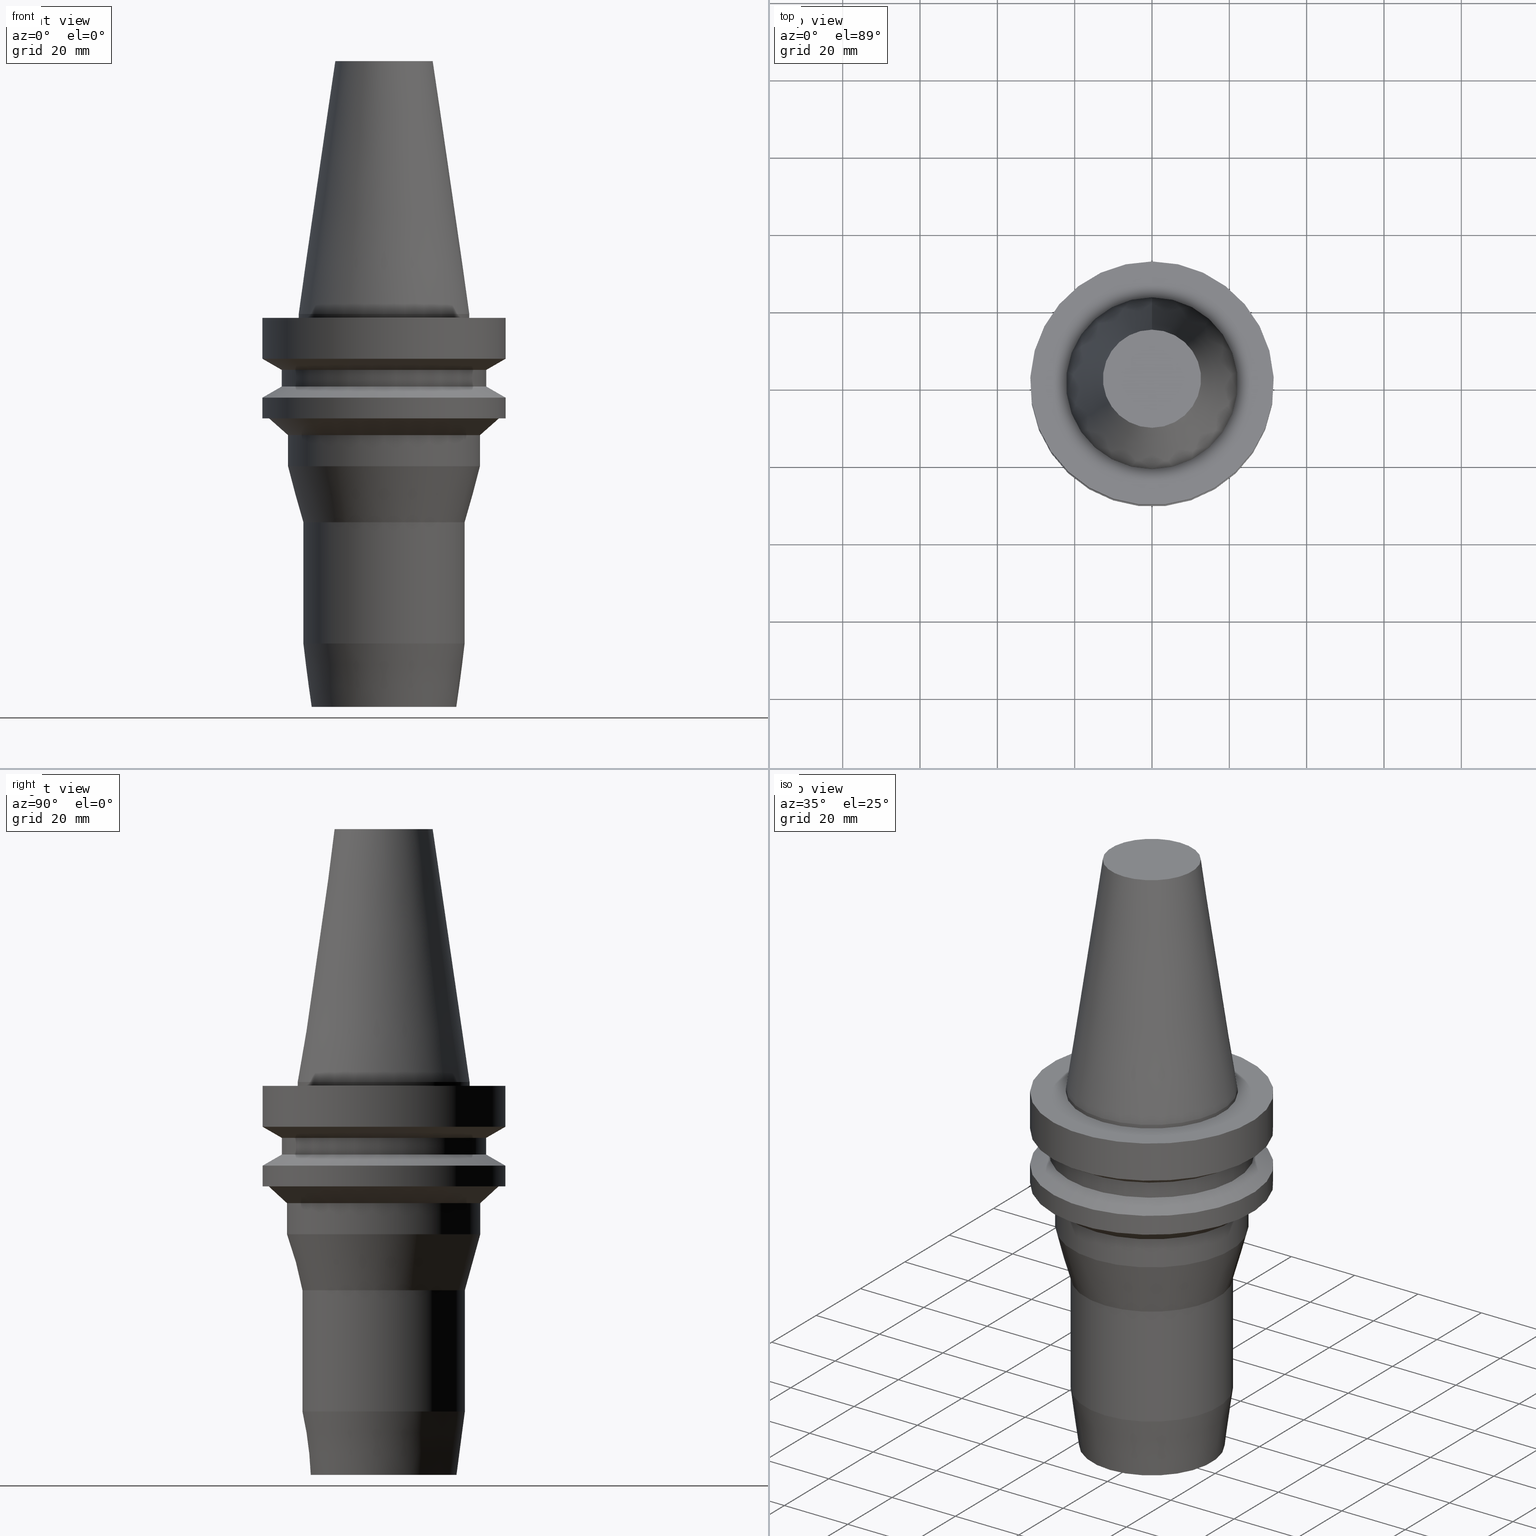
[diagram: canonical four-view strip — front | top / right | iso, engineering-drawing reading convention]
A machine part, canonical four-view strip (front | top / right | iso — engineering-drawing reading convention). The complete STEP part file that produces these views, byte-faithful:
ISO-10303-21;
HEADER;
FILE_DESCRIPTION((''),'1');
FILE_NAME('V:/90_\X2\53D65F9730C730FC30BF\X0\/00_\X2\6DE18DEF30C730FC30BF\X0\/ALL/BBT-BKUS\X2\FF76FF80FF9BFF78FF9E752852A05DE556F3\X0\201801/BBT40-HDC/BBT40-HDC.750-4.stp','2018-02-07T05:18:08',(''),(''),'Spatial Interop R21 SP3','Kubotek KeyCreator 2011 V10.0.2 (22737)',' ');
FILE_SCHEMA(('automotive_design'));
ENDSEC;
DATA;
#1=MECHANICAL_DESIGN_GEOMETRIC_PRESENTATION_REPRESENTATION(' ',(#10,#11,#12,#13,#14,#15,#16,#17,#18,#19,#20,#21,#22,#23,#24,#25,#26,#27,#28,#29,#30,#31,#32,#33,#34,#35,#36,#37,#38,#39,#40,#41),#6);
#2=PRODUCT_DEFINITION_CONTEXT('',#42,'design');
#3=APPLICATION_PROTOCOL_DEFINITION('INTERNATIONAL STANDARD','automotive_design',1994,#42);
#4=PRODUCT_CATEGORY_RELATIONSHIP('NONE','NONE',#43,#44);
#5=SHAPE_DEFINITION_REPRESENTATION(#45,#46);
#6= (GEOMETRIC_REPRESENTATION_CONTEXT(3)GLOBAL_UNCERTAINTY_ASSIGNED_CONTEXT((#49))GLOBAL_UNIT_ASSIGNED_CONTEXT((#51,#52,#53))REPRESENTATION_CONTEXT('NONE','WORKSPACE'));
#10=STYLED_ITEM('',(#55,#56),#57);
#11=STYLED_ITEM('',(#58,#59),#60);
#12=STYLED_ITEM('',(#61),#62);
#13=STYLED_ITEM('',(#63,#64),#65);
#14=STYLED_ITEM('',(#66),#67);
#15=STYLED_ITEM('',(#68),#69);
#16=STYLED_ITEM('',(#70),#71);
#17=STYLED_ITEM('',(#72),#73);
#18=STYLED_ITEM('',(#74),#75);
#19=STYLED_ITEM('',(#76,#77),#78);
#20=STYLED_ITEM('',(#79,#80),#81);
#21=STYLED_ITEM('',(#82,#83),#84);
#22=STYLED_ITEM('',(#85),#86);
#23=STYLED_ITEM('',(#87,#88),#89);
#24=STYLED_ITEM('',(#90,#91),#92);
#25=STYLED_ITEM('',(#93,#94),#95);
#26=STYLED_ITEM('',(#96),#97);
#27=STYLED_ITEM('',(#98),#99);
#28=STYLED_ITEM('',(#100,#101),#102);
#29=STYLED_ITEM('',(#103),#104);
#30=STYLED_ITEM('',(#105),#106);
#31=STYLED_ITEM('',(#107,#108),#109);
#32=STYLED_ITEM('',(#110,#111),#112);
#33=STYLED_ITEM('',(#113,#114),#115);
#34=STYLED_ITEM('',(#116),#117);
#35=STYLED_ITEM('',(#118,#119),#120);
#36=STYLED_ITEM('',(#121,#122),#123);
#37=STYLED_ITEM('',(#124),#125);
#38=STYLED_ITEM('',(#126),#127);
#39=STYLED_ITEM('',(#128,#129),#130);
#40=STYLED_ITEM('',(#131,#132),#133);
#41=STYLED_ITEM('',(#134),#135);
#42=APPLICATION_CONTEXT(' ');
#43=PRODUCT_CATEGORY('part','NONE');
#44=PRODUCT_RELATED_PRODUCT_CATEGORY('detail',' ',(#136));
#45=PRODUCT_DEFINITION_SHAPE('NONE','NONE',#137);
#46=ADVANCED_BREP_SHAPE_REPRESENTATION('Unnamed[1]',(#109,#138),#6);
#49=UNCERTAINTY_MEASURE_WITH_UNIT(LENGTH_MEASURE(1.0E-006),#51,'','');
#51= (CONVERSION_BASED_UNIT('MILLIMETRE',#141)LENGTH_UNIT()NAMED_UNIT(#144));
#52= (NAMED_UNIT(#146)PLANE_ANGLE_UNIT()SI_UNIT($,.RADIAN.));
#53= (NAMED_UNIT(#146)SOLID_ANGLE_UNIT()SI_UNIT($,.STERADIAN.));
#55=PRESENTATION_STYLE_ASSIGNMENT((#152));
#56=PRESENTATION_STYLE_ASSIGNMENT((#153));
#57=ADVANCED_FACE('Unnamed[1]',(#154,#155),#156,.T.);
#58=PRESENTATION_STYLE_ASSIGNMENT((#157));
#59=PRESENTATION_STYLE_ASSIGNMENT((#158));
#60=ADVANCED_FACE('Unnamed[1]',(#159,#160),#161,.T.);
#61=PRESENTATION_STYLE_ASSIGNMENT((#162));
#62=EDGE_CURVE('Unnamed[1]',#163,#163,#164,.T.);
#63=PRESENTATION_STYLE_ASSIGNMENT((#165));
#64=PRESENTATION_STYLE_ASSIGNMENT((#166));
#65=ADVANCED_FACE('Unnamed[1]',(#167,#168),#169,.T.);
#66=PRESENTATION_STYLE_ASSIGNMENT((#170));
#67=EDGE_CURVE('Unnamed[1]',#171,#171,#172,.T.);
#68=PRESENTATION_STYLE_ASSIGNMENT((#173));
#69=EDGE_CURVE('Unnamed[1]',#174,#174,#175,.T.);
#70=PRESENTATION_STYLE_ASSIGNMENT((#176));
#71=EDGE_CURVE('Unnamed[1]',#177,#177,#178,.T.);
#72=PRESENTATION_STYLE_ASSIGNMENT((#179));
#73=EDGE_CURVE('Unnamed[1]',#180,#180,#181,.T.);
#74=PRESENTATION_STYLE_ASSIGNMENT((#182));
#75=EDGE_CURVE('Unnamed[1]',#183,#183,#184,.T.);
#76=PRESENTATION_STYLE_ASSIGNMENT((#185));
#77=PRESENTATION_STYLE_ASSIGNMENT((#186));
#78=ADVANCED_FACE('Unnamed[1]',(#187,#188),#189,.T.);
#79=PRESENTATION_STYLE_ASSIGNMENT((#190));
#80=PRESENTATION_STYLE_ASSIGNMENT((#191));
#81=ADVANCED_FACE('Unnamed[1]',(#192,#193),#194,.T.);
#82=PRESENTATION_STYLE_ASSIGNMENT((#195));
#83=PRESENTATION_STYLE_ASSIGNMENT((#196));
#84=ADVANCED_FACE('Unnamed[1]',(#197,#198),#199,.T.);
#85=PRESENTATION_STYLE_ASSIGNMENT((#200));
#86=EDGE_CURVE('Unnamed[1]',#201,#201,#202,.T.);
#87=PRESENTATION_STYLE_ASSIGNMENT((#203));
#88=PRESENTATION_STYLE_ASSIGNMENT((#204));
#89=ADVANCED_FACE('Unnamed[1]',(#205,#206),#207,.T.);
#90=PRESENTATION_STYLE_ASSIGNMENT((#208));
#91=PRESENTATION_STYLE_ASSIGNMENT((#209));
#92=ADVANCED_FACE('Unnamed[1]',(#210,#211),#212,.T.);
#93=PRESENTATION_STYLE_ASSIGNMENT((#213));
#94=PRESENTATION_STYLE_ASSIGNMENT((#214));
#95=ADVANCED_FACE('Unnamed[1]',(#215,#216),#217,.T.);
#96=PRESENTATION_STYLE_ASSIGNMENT((#218));
#97=EDGE_CURVE('Unnamed[1]',#219,#219,#220,.T.);
#98=PRESENTATION_STYLE_ASSIGNMENT((#221));
#99=EDGE_CURVE('Unnamed[1]',#222,#222,#223,.T.);
#100=PRESENTATION_STYLE_ASSIGNMENT((#224));
#101=PRESENTATION_STYLE_ASSIGNMENT((#225));
#102=ADVANCED_FACE('Unnamed[1]',(#226,#227),#228,.T.);
#103=PRESENTATION_STYLE_ASSIGNMENT((#229));
#104=EDGE_CURVE('Unnamed[1]',#230,#230,#231,.T.);
#105=PRESENTATION_STYLE_ASSIGNMENT((#232));
#106=EDGE_CURVE('Unnamed[1]',#233,#233,#234,.T.);
#107=PRESENTATION_STYLE_ASSIGNMENT((#235));
#108=PRESENTATION_STYLE_ASSIGNMENT((#236));
#109=MANIFOLD_SOLID_BREP('Unnamed[1]',#237);
#110=PRESENTATION_STYLE_ASSIGNMENT((#238));
#111=PRESENTATION_STYLE_ASSIGNMENT((#239));
#112=ADVANCED_FACE('Unnamed[1]',(#240,#241),#242,.T.);
#113=PRESENTATION_STYLE_ASSIGNMENT((#243));
#114=PRESENTATION_STYLE_ASSIGNMENT((#244));
#115=ADVANCED_FACE('Unnamed[1]',(#245),#246,.T.);
#116=PRESENTATION_STYLE_ASSIGNMENT((#247));
#117=EDGE_CURVE('Unnamed[1]',#248,#248,#249,.T.);
#118=PRESENTATION_STYLE_ASSIGNMENT((#250));
#119=PRESENTATION_STYLE_ASSIGNMENT((#251));
#120=ADVANCED_FACE('Unnamed[1]',(#252,#253),#254,.T.);
#121=PRESENTATION_STYLE_ASSIGNMENT((#255));
#122=PRESENTATION_STYLE_ASSIGNMENT((#256));
#123=ADVANCED_FACE('Unnamed[1]',(#257,#258),#259,.T.);
#124=PRESENTATION_STYLE_ASSIGNMENT((#260));
#125=EDGE_CURVE('Unnamed[1]',#261,#261,#262,.T.);
#126=PRESENTATION_STYLE_ASSIGNMENT((#263));
#127=EDGE_CURVE('Unnamed[1]',#264,#264,#265,.T.);
#128=PRESENTATION_STYLE_ASSIGNMENT((#266));
#129=PRESENTATION_STYLE_ASSIGNMENT((#267));
#130=ADVANCED_FACE('Unnamed[1]',(#268,#269),#270,.T.);
#131=PRESENTATION_STYLE_ASSIGNMENT((#271));
#132=PRESENTATION_STYLE_ASSIGNMENT((#272));
#133=ADVANCED_FACE('Unnamed[1]',(#273),#274,.T.);
#134=PRESENTATION_STYLE_ASSIGNMENT((#275));
#135=EDGE_CURVE('Unnamed[1]',#276,#276,#277,.T.);
#136=PRODUCT('Unnamed[1]','Unnamed[1]','PART-Unnamed[1]-DESC',(#278));
#137=PRODUCT_DEFINITION('NONE','NONE',#279,#2);
#138=AXIS2_PLACEMENT_3D('',#280,#281,#282);
#141=LENGTH_MEASURE_WITH_UNIT(LENGTH_MEASURE(1.0),#283);
#144=DIMENSIONAL_EXPONENTS(1.0,0.0,0.0,0.0,0.0,0.0,0.0);
#146=DIMENSIONAL_EXPONENTS(0.0,0.0,0.0,0.0,0.0,0.0,0.0);
#152=SURFACE_STYLE_USAGE(.BOTH.,#284);
#153=CURVE_STYLE('',#285,POSITIVE_LENGTH_MEASURE(1000.0),#286);
#154=FACE_BOUND('',#287,.T.);
#155=FACE_BOUND('',#288,.T.);
#156=CYLINDRICAL_SURFACE('',#289,22.225);
#157=SURFACE_STYLE_USAGE(.BOTH.,#290);
#158=CURVE_STYLE('',#291,POSITIVE_LENGTH_MEASURE(1000.0),#292);
#159=FACE_BOUND('',#293,.T.);
#160=FACE_BOUND('',#294,.T.);
#161=CYLINDRICAL_SURFACE('',#295,26.4999999999997);
#162=CURVE_STYLE('',#296,POSITIVE_LENGTH_MEASURE(1000.0),#297);
#163=VERTEX_POINT('',#298);
#164=CIRCLE('',#299,26.5);
#165=SURFACE_STYLE_USAGE(.BOTH.,#300);
#166=CURVE_STYLE('',#301,POSITIVE_LENGTH_MEASURE(1000.0),#302);
#167=FACE_BOUND('',#303,.T.);
#168=FACE_BOUND('',#304,.T.);
#169=CONICAL_SURFACE('',#305,29.0000000000003,1.04719755119651);
#170=CURVE_STYLE('',#306,POSITIVE_LENGTH_MEASURE(1000.0),#307);
#171=VERTEX_POINT('',#308);
#172=CIRCLE('',#309,31.5000000000007);
#173=CURVE_STYLE('',#310,POSITIVE_LENGTH_MEASURE(1000.0),#311);
#174=VERTEX_POINT('',#312);
#175=CIRCLE('',#313,22.225);
#176=CURVE_STYLE('',#314,POSITIVE_LENGTH_MEASURE(1000.0),#315);
#177=VERTEX_POINT('',#316);
#178=CIRCLE('',#317,31.5000000000004);
#179=CURVE_STYLE('',#318,POSITIVE_LENGTH_MEASURE(1000.0),#319);
#180=VERTEX_POINT('',#320);
#181=CIRCLE('',#321,25.0);
#182=CURVE_STYLE('',#322,POSITIVE_LENGTH_MEASURE(1000.0),#323);
#183=VERTEX_POINT('',#324);
#184=CIRCLE('',#325,25.0);
#185=SURFACE_STYLE_USAGE(.BOTH.,#326);
#186=CURVE_STYLE('',#327,POSITIVE_LENGTH_MEASURE(1000.0),#328);
#187=FACE_BOUND('',#329,.T.);
#188=FACE_BOUND('',#330,.T.);
#189=CONICAL_SURFACE('',#331,19.9227653025994,0.130899693899637);
#190=SURFACE_STYLE_USAGE(.BOTH.,#332);
#191=CURVE_STYLE('',#333,POSITIVE_LENGTH_MEASURE(1000.0),#334);
#192=FACE_OUTER_BOUND('',#335,.T.);
#193=FACE_BOUND('',#336,.T.);
#194=PLANE('',#337);
#195=SURFACE_STYLE_USAGE(.BOTH.,#338);
#196=CURVE_STYLE('',#339,POSITIVE_LENGTH_MEASURE(1000.0),#340);
#197=FACE_BOUND('',#341,.T.);
#198=FACE_BOUND('',#342,.T.);
#199=CONICAL_SURFACE('',#343,23.0,0.269198106742314);
#200=CURVE_STYLE('',#344,POSITIVE_LENGTH_MEASURE(1000.0),#345);
#201=VERTEX_POINT('',#346);
#202=CIRCLE('',#347,12.6875000000001);
#203=SURFACE_STYLE_USAGE(.BOTH.,#348);
#204=CURVE_STYLE('',#349,POSITIVE_LENGTH_MEASURE(1000.0),#350);
#205=FACE_BOUND('',#351,.T.);
#206=FACE_BOUND('',#352,.T.);
#207=CONICAL_SURFACE('',#353,17.4562500000001,0.144812498238936);
#208=SURFACE_STYLE_USAGE(.BOTH.,#354);
#209=CURVE_STYLE('',#355,POSITIVE_LENGTH_MEASURE(1000.0),#356);
#210=FACE_BOUND('',#357,.T.);
#211=FACE_BOUND('',#358,.T.);
#212=CYLINDRICAL_SURFACE('',#359,31.5000000000005);
#213=SURFACE_STYLE_USAGE(.BOTH.,#360);
#214=CURVE_STYLE('',#361,POSITIVE_LENGTH_MEASURE(1000.0),#362);
#215=FACE_BOUND('',#363,.T.);
#216=FACE_BOUND('',#364,.T.);
#217=CYLINDRICAL_SURFACE('',#365,21.0000000000002);
#218=CURVE_STYLE('',#366,POSITIVE_LENGTH_MEASURE(1000.0),#367);
#219=VERTEX_POINT('',#368);
#220=CIRCLE('',#369,22.225);
#221=CURVE_STYLE('',#370,POSITIVE_LENGTH_MEASURE(1000.0),#371);
#222=VERTEX_POINT('',#372);
#223=CIRCLE('',#373,31.4999999999997);
#224=SURFACE_STYLE_USAGE(.BOTH.,#374);
#225=CURVE_STYLE('',#375,POSITIVE_LENGTH_MEASURE(1000.0),#376);
#226=FACE_BOUND('',#377,.T.);
#227=FACE_BOUND('',#378,.T.);
#228=CONICAL_SURFACE('',#379,28.9999999999999,1.04719755119657);
#229=CURVE_STYLE('',#380,POSITIVE_LENGTH_MEASURE(1000.0),#381);
#230=VERTEX_POINT('',#382);
#231=CIRCLE('',#383,29.7145262827772);
#232=CURVE_STYLE('',#384,POSITIVE_LENGTH_MEASURE(1000.0),#385);
#233=VERTEX_POINT('',#386);
#234=CIRCLE('',#387,18.8455306051985);
#235=SURFACE_STYLE_USAGE(.BOTH.,#388);
#236=CURVE_STYLE('',#389,POSITIVE_LENGTH_MEASURE(1000.0),#390);
#237=CLOSED_SHELL('',(#133,#89,#57,#81,#123,#102,#60,#65,#92,#120,#112,#130,#84,#95,#78,#115));
#238=SURFACE_STYLE_USAGE(.BOTH.,#391);
#239=CURVE_STYLE('',#392,POSITIVE_LENGTH_MEASURE(1000.0),#393);
#240=FACE_BOUND('',#394,.T.);
#241=FACE_BOUND('',#395,.T.);
#242=CONICAL_SURFACE('',#396,27.3572631413886,0.827872767934572);
#243=SURFACE_STYLE_USAGE(.BOTH.,#397);
#244=CURVE_STYLE('',#398,POSITIVE_LENGTH_MEASURE(1000.0),#399);
#245=FACE_OUTER_BOUND('',#400,.T.);
#246=PLANE('',#401);
#247=CURVE_STYLE('',#402,POSITIVE_LENGTH_MEASURE(1000.0),#403);
#248=VERTEX_POINT('',#404);
#249=CIRCLE('',#405,26.4999999999994);
#250=SURFACE_STYLE_USAGE(.BOTH.,#406);
#251=CURVE_STYLE('',#407,POSITIVE_LENGTH_MEASURE(1000.0),#408);
#252=FACE_BOUND('',#409,.T.);
#253=FACE_OUTER_BOUND('',#410,.T.);
#254=PLANE('',#411);
#255=SURFACE_STYLE_USAGE(.BOTH.,#412);
#256=CURVE_STYLE('',#413,POSITIVE_LENGTH_MEASURE(1000.0),#414);
#257=FACE_BOUND('',#415,.T.);
#258=FACE_BOUND('',#416,.T.);
#259=CYLINDRICAL_SURFACE('',#417,31.5);
#260=CURVE_STYLE('',#418,POSITIVE_LENGTH_MEASURE(1000.0),#419);
#261=VERTEX_POINT('',#420);
#262=CIRCLE('',#421,31.5000000000003);
#263=CURVE_STYLE('',#422,POSITIVE_LENGTH_MEASURE(1000.0),#423);
#264=VERTEX_POINT('',#424);
#265=CIRCLE('',#425,21.0000000000001);
#266=SURFACE_STYLE_USAGE(.BOTH.,#426);
#267=CURVE_STYLE('',#427,POSITIVE_LENGTH_MEASURE(1000.0),#428);
#268=FACE_BOUND('',#429,.T.);
#269=FACE_BOUND('',#430,.T.);
#270=CYLINDRICAL_SURFACE('',#431,25.0);
#271=SURFACE_STYLE_USAGE(.BOTH.,#432);
#272=CURVE_STYLE('',#433,POSITIVE_LENGTH_MEASURE(1000.0),#434);
#273=FACE_OUTER_BOUND('',#435,.T.);
#274=PLANE('',#436);
#275=CURVE_STYLE('',#437,POSITIVE_LENGTH_MEASURE(1000.0),#438);
#276=VERTEX_POINT('',#439);
#277=CIRCLE('',#440,21.0000000000003);
#278=PRODUCT_CONTEXT('',#42,'mechanical');
#279=PRODUCT_DEFINITION_FORMATION_WITH_SPECIFIED_SOURCE(' ','NONE',#136,.NOT_KNOWN.);
#280=CARTESIAN_POINT('',(0.0,0.0,0.0));
#281=DIRECTION('',(0.0,0.0,1.0));
#282=DIRECTION('',(1.0,0.0,0.0));
#283= (NAMED_UNIT(#144)LENGTH_UNIT()SI_UNIT(.MILLI.,.METRE.));
#284=SURFACE_SIDE_STYLE('',(#442));
#285=DRAUGHTING_PRE_DEFINED_CURVE_FONT('continuous');
#286=COLOUR_RGB('',0.0,1.0,0.0);
#287=EDGE_LOOP('',(#443));
#288=EDGE_LOOP('',(#444));
#289=AXIS2_PLACEMENT_3D('',#445,#446,#447);
#290=SURFACE_SIDE_STYLE('',(#448));
#291=DRAUGHTING_PRE_DEFINED_CURVE_FONT('continuous');
#292=COLOUR_RGB('',0.0,1.0,0.0);
#293=EDGE_LOOP('',(#449));
#294=EDGE_LOOP('',(#450));
#295=AXIS2_PLACEMENT_3D('',#451,#452,#453);
#296=DRAUGHTING_PRE_DEFINED_CURVE_FONT('continuous');
#297=COLOUR_RGB('',0.0,1.0,0.0);
#298=CARTESIAN_POINT('',(1.1479681728942E-015,26.5,-18.7477430013855));
#299=AXIS2_PLACEMENT_3D('',#454,#455,#456);
#300=SURFACE_SIDE_STYLE('',(#457));
#301=DRAUGHTING_PRE_DEFINED_CURVE_FONT('continuous');
#302=COLOUR_RGB('',0.0,1.0,0.0);
#303=EDGE_LOOP('',(#458));
#304=EDGE_LOOP('',(#459));
#305=AXIS2_PLACEMENT_3D('',#460,#461,#462);
#306=DRAUGHTING_PRE_DEFINED_CURVE_FONT('continuous');
#307=COLOUR_RGB('',0.0,1.0,0.0);
#308=CARTESIAN_POINT('',(1.32473071268174E-015,31.5000000000007,-21.6344943473346));
#309=AXIS2_PLACEMENT_3D('',#463,#464,#465);
#310=DRAUGHTING_PRE_DEFINED_CURVE_FONT('continuous');
#311=COLOUR_RGB('',0.0,1.0,0.0);
#312=CARTESIAN_POINT('',(6.12323399573622E-017,22.2250000000001,-0.999999999999912));
#313=AXIS2_PLACEMENT_3D('',#466,#467,#468);
#314=DRAUGHTING_PRE_DEFINED_CURVE_FONT('continuous');
#315=COLOUR_RGB('',0.0,1.0,0.0);
#316=CARTESIAN_POINT('',(1.65327317884891E-015,31.5000000000004,-26.9999999999998));
#317=AXIS2_PLACEMENT_3D('',#469,#470,#471);
#318=DRAUGHTING_PRE_DEFINED_CURVE_FONT('continuous');
#319=COLOUR_RGB('',0.0,1.0,0.0);
#320=CARTESIAN_POINT('',(2.41021091899415E-015,25.0,-39.3617314097785));
#321=AXIS2_PLACEMENT_3D('',#472,#473,#474);
#322=DRAUGHTING_PRE_DEFINED_CURVE_FONT('continuous');
#323=COLOUR_RGB('',0.0,1.0,0.0);
#324=CARTESIAN_POINT('',(1.91841698853012E-015,25.0,-31.3301270189216));
#325=AXIS2_PLACEMENT_3D('',#475,#476,#477);
#326=SURFACE_SIDE_STYLE('',(#478));
#327=DRAUGHTING_PRE_DEFINED_CURVE_FONT('continuous');
#328=COLOUR_RGB('',0.0,1.0,0.0);
#329=EDGE_LOOP('',(#479));
#330=EDGE_LOOP('',(#480));
#331=AXIS2_PLACEMENT_3D('',#481,#482,#483);
#332=SURFACE_SIDE_STYLE('',(#484));
#333=DRAUGHTING_PRE_DEFINED_CURVE_FONT('continuous');
#334=COLOUR_RGB('',0.0,1.0,0.0);
#335=EDGE_LOOP('',(#485));
#336=EDGE_LOOP('',(#486));
#337=AXIS2_PLACEMENT_3D('',#487,#488,#489);
#338=SURFACE_SIDE_STYLE('',(#490));
#339=DRAUGHTING_PRE_DEFINED_CURVE_FONT('continuous');
#340=COLOUR_RGB('',0.0,1.0,0.0);
#341=EDGE_LOOP('',(#491));
#342=EDGE_LOOP('',(#492));
#343=AXIS2_PLACEMENT_3D('',#493,#494,#495);
#344=DRAUGHTING_PRE_DEFINED_CURVE_FONT('continuous');
#345=COLOUR_RGB('',0.0,1.0,0.0);
#346=CARTESIAN_POINT('',(-4.00459503321185E-015,12.6875000000002,65.4000000000001));
#347=AXIS2_PLACEMENT_3D('',#496,#497,#498);
#348=SURFACE_SIDE_STYLE('',(#499));
#349=DRAUGHTING_PRE_DEFINED_CURVE_FONT('continuous');
#350=COLOUR_RGB('',0.0,1.0,0.0);
#351=EDGE_LOOP('',(#500));
#352=EDGE_LOOP('',(#501));
#353=AXIS2_PLACEMENT_3D('',#502,#503,#504);
#354=SURFACE_SIDE_STYLE('',(#505));
#355=DRAUGHTING_PRE_DEFINED_CURVE_FONT('continuous');
#356=COLOUR_RGB('',0.0,1.0,0.0);
#357=EDGE_LOOP('',(#506));
#358=EDGE_LOOP('',(#507));
#359=AXIS2_PLACEMENT_3D('',#508,#509,#510);
#360=SURFACE_SIDE_STYLE('',(#511));
#361=DRAUGHTING_PRE_DEFINED_CURVE_FONT('continuous');
#362=COLOUR_RGB('',0.0,1.0,0.0);
#363=EDGE_LOOP('',(#512));
#364=EDGE_LOOP('',(#513));
#365=AXIS2_PLACEMENT_3D('',#514,#515,#516);
#366=DRAUGHTING_PRE_DEFINED_CURVE_FONT('continuous');
#367=COLOUR_RGB('',0.0,1.0,0.0);
#368=CARTESIAN_POINT('',(1.71319921032766E-029,22.2250000000001,-2.8153873565375E-013));
#369=AXIS2_PLACEMENT_3D('',#517,#518,#519);
#370=DRAUGHTING_PRE_DEFINED_CURVE_FONT('continuous');
#371=COLOUR_RGB('',0.0,1.0,0.0);
#372=CARTESIAN_POINT('',(6.12323399573568E-017,31.4999999999997,-0.999999999999825));
#373=AXIS2_PLACEMENT_3D('',#520,#521,#522);
#374=SURFACE_SIDE_STYLE('',(#523));
#375=DRAUGHTING_PRE_DEFINED_CURVE_FONT('continuous');
#376=COLOUR_RGB('',0.0,1.0,0.0);
#377=EDGE_LOOP('',(#524));
#378=EDGE_LOOP('',(#525));
#379=AXIS2_PLACEMENT_3D('',#526,#527,#528);
#380=DRAUGHTING_PRE_DEFINED_CURVE_FONT('continuous');
#381=COLOUR_RGB('',0.0,1.0,0.0);
#382=CARTESIAN_POINT('',(1.65327317884891E-015,29.7145262827772,-26.9999999999998));
#383=AXIS2_PLACEMENT_3D('',#529,#530,#531);
#384=DRAUGHTING_PRE_DEFINED_CURVE_FONT('continuous');
#385=COLOUR_RGB('',0.0,1.0,0.0);
#386=CARTESIAN_POINT('',(6.22120573966854E-015,18.8455306051985,-101.6));
#387=AXIS2_PLACEMENT_3D('',#532,#533,#534);
#388=SURFACE_SIDE_STYLE('',(#535));
#389=DRAUGHTING_PRE_DEFINED_CURVE_FONT('continuous');
#390=COLOUR_RGB('',0.0,1.0,0.0);
#391=SURFACE_SIDE_STYLE('',(#536));
#392=DRAUGHTING_PRE_DEFINED_CURVE_FONT('continuous');
#393=COLOUR_RGB('',0.0,1.0,0.0);
#394=EDGE_LOOP('',(#537));
#395=EDGE_LOOP('',(#538));
#396=AXIS2_PLACEMENT_3D('',#539,#540,#541);
#397=SURFACE_SIDE_STYLE('',(#542));
#398=DRAUGHTING_PRE_DEFINED_CURVE_FONT('continuous');
#399=COLOUR_RGB('',0.0,1.0,0.0);
#400=EDGE_LOOP('',(#543));
#401=AXIS2_PLACEMENT_3D('',#544,#545,#546);
#402=DRAUGHTING_PRE_DEFINED_CURVE_FONT('continuous');
#403=COLOUR_RGB('',0.0,1.0,0.0);
#404=CARTESIAN_POINT('',(8.8494551369045E-016,26.4999999999995,-14.4522569986152));
#405=AXIS2_PLACEMENT_3D('',#547,#548,#549);
#406=SURFACE_SIDE_STYLE('',(#550));
#407=DRAUGHTING_PRE_DEFINED_CURVE_FONT('continuous');
#408=COLOUR_RGB('',0.0,1.0,0.0);
#409=EDGE_LOOP('',(#551));
#410=EDGE_LOOP('',(#552));
#411=AXIS2_PLACEMENT_3D('',#553,#554,#555);
#412=SURFACE_SIDE_STYLE('',(#556));
#413=DRAUGHTING_PRE_DEFINED_CURVE_FONT('continuous');
#414=COLOUR_RGB('',0.0,1.0,0.0);
#415=EDGE_LOOP('',(#557));
#416=EDGE_LOOP('',(#558));
#417=AXIS2_PLACEMENT_3D('',#559,#560,#561);
#418=DRAUGHTING_PRE_DEFINED_CURVE_FONT('continuous');
#419=COLOUR_RGB('',0.0,1.0,0.0);
#420=CARTESIAN_POINT('',(7.08182973902924E-016,31.5000000000004,-11.5655056526664));
#421=AXIS2_PLACEMENT_3D('',#562,#563,#564);
#422=DRAUGHTING_PRE_DEFINED_CURVE_FONT('continuous');
#423=COLOUR_RGB('',0.0,1.0,0.0);
#424=CARTESIAN_POINT('',(3.29797383010386E-015,21.0000000000001,-53.8600000000006));
#425=AXIS2_PLACEMENT_3D('',#565,#566,#567);
#426=SURFACE_SIDE_STYLE('',(#568));
#427=DRAUGHTING_PRE_DEFINED_CURVE_FONT('continuous');
#428=COLOUR_RGB('',0.0,1.0,0.0);
#429=EDGE_LOOP('',(#569));
#430=EDGE_LOOP('',(#570));
#431=AXIS2_PLACEMENT_3D('',#571,#572,#573);
#432=SURFACE_SIDE_STYLE('',(#574));
#433=DRAUGHTING_PRE_DEFINED_CURVE_FONT('continuous');
#434=COLOUR_RGB('',0.0,1.0,0.0);
#435=EDGE_LOOP('',(#575));
#436=AXIS2_PLACEMENT_3D('',#576,#577,#578);
#437=DRAUGHTING_PRE_DEFINED_CURVE_FONT('continuous');
#438=COLOUR_RGB('',0.0,1.0,0.0);
#439=CARTESIAN_POINT('',(5.21914953239753E-015,21.0000000000003,-85.2351802337018));
#440=AXIS2_PLACEMENT_3D('',#579,#580,#581);
#442=SURFACE_STYLE_FILL_AREA(#582);
#443=ORIENTED_EDGE('',*,*,#69,.F.);
#444=ORIENTED_EDGE('',*,*,#97,.T.);
#445=CARTESIAN_POINT('',(3.06161699786891E-017,4.05085249906471E-014,-0.500000000000085));
#446=DIRECTION('',(6.12323399573677E-017,-5.47979376128762E-016,-1.0));
#447=DIRECTION('',(2.87269067179714E-032,1.0,-5.47979376128762E-016));
#448=SURFACE_STYLE_FILL_AREA(#583);
#449=ORIENTED_EDGE('',*,*,#62,.F.);
#450=ORIENTED_EDGE('',*,*,#117,.T.);
#451=CARTESIAN_POINT('',(1.01645684329232E-015,3.16860570349738E-014,-16.6000000000003));
#452=DIRECTION('',(6.12323399573677E-017,-5.47979376128735E-016,-1.0));
#453=DIRECTION('',(2.87269067179732E-032,1.0,-5.47979376128735E-016));
#454=CARTESIAN_POINT('',(1.1479681728942E-015,3.05091381649899E-014,-18.7477430013855));
#455=DIRECTION('',(6.12323399573677E-017,-5.47979376128729E-016,-1.0));
#456=DIRECTION('',(2.87269067179729E-032,1.0,-5.47979376128729E-016));
#457=SURFACE_STYLE_FILL_AREA(#584);
#458=ORIENTED_EDGE('',*,*,#67,.F.);
#459=ORIENTED_EDGE('',*,*,#62,.T.);
#460=CARTESIAN_POINT('',(1.23634944278797E-015,2.97181980641938E-014,-20.1911186743601));
#461=DIRECTION('',(6.12323399573677E-017,-5.47979376128752E-016,-1.0));
#462=DIRECTION('',(2.87269067179715E-032,1.0,-5.47979376128752E-016));
#463=CARTESIAN_POINT('',(1.32473071268174E-015,2.89272579633978E-014,-21.6344943473346));
#464=DIRECTION('',(6.12323399573677E-017,-5.47979376128772E-016,-1.0));
#465=DIRECTION('',(2.87269067179761E-032,1.0,-5.47979376128772E-016));
#466=CARTESIAN_POINT('',(6.12323399573616E-017,4.02345353025828E-014,-0.999999999999901));
#467=DIRECTION('',(6.12323399573677E-017,-5.47979376128762E-016,-1.0));
#468=DIRECTION('',(2.87269067179714E-032,1.0,-5.47979376128762E-016));
#469=CARTESIAN_POINT('',(1.65327317884891E-015,2.5987071523235E-014,-26.9999999999998));
#470=DIRECTION('',(6.12323399573677E-017,-5.47979376128777E-016,-1.0));
#471=DIRECTION('',(2.87269067179764E-032,1.0,-5.47979376128777E-016));
#472=CARTESIAN_POINT('',(2.41021091899415E-015,1.92130976574331E-014,-39.3617314097785));
#473=DIRECTION('',(6.12323399573677E-017,-5.47979376128813E-016,-1.0));
#474=DIRECTION('',(2.87269067179751E-032,1.0,-5.47979376128813E-016));
#475=CARTESIAN_POINT('',(1.91841698853012E-015,2.36142512208479E-014,-31.3301270189216));
#476=DIRECTION('',(6.12323399573677E-017,-5.47979376128813E-016,-1.0));
#477=DIRECTION('',(2.8726906717968E-032,1.0,-5.47979376128813E-016));
#478=SURFACE_STYLE_FILL_AREA(#585);
#479=ORIENTED_EDGE('',*,*,#106,.F.);
#480=ORIENTED_EDGE('',*,*,#135,.T.);
#481=CARTESIAN_POINT('',(5.72017763603303E-015,-1.0408398072973E-014,-93.4175901168507));
#482=DIRECTION('',(-6.12323399573677E-017,5.47979376128795E-016,1.0));
#483=DIRECTION('',(2.87269067179703E-032,1.0,-5.47979376128795E-016));
#484=SURFACE_STYLE_FILL_AREA(#586);
#485=ORIENTED_EDGE('',*,*,#99,.F.);
#486=ORIENTED_EDGE('',*,*,#69,.T.);
#487=CARTESIAN_POINT('',(6.12323399573595E-017,26.8624999999999,-0.999999999999869));
#488=DIRECTION('',(-6.12323399573677E-017,-9.35138060429241E-015,1.0));
#489=DIRECTION('',(5.77434068963536E-031,-1.0,-9.35138060429241E-015));
#490=SURFACE_STYLE_FILL_AREA(#587);
#491=ORIENTED_EDGE('',*,*,#127,.F.);
#492=ORIENTED_EDGE('',*,*,#73,.T.);
#493=CARTESIAN_POINT('',(2.85409237454901E-015,1.52407215689245E-014,-46.6108657048895));
#494=DIRECTION('',(-6.12323399573677E-017,5.47979376128775E-016,1.0));
#495=DIRECTION('',(2.87269067179732E-032,1.0,-5.47979376128775E-016));
#496=CARTESIAN_POINT('',(-4.00459503321185E-015,7.66203658775327E-014,65.4000000000001));
#497=DIRECTION('',(6.12323399573677E-017,-5.47979376128786E-016,-1.0));
#498=DIRECTION('',(2.8726906717969E-032,1.0,-5.47979376128786E-016));
#499=SURFACE_STYLE_FILL_AREA(#588);
#500=ORIENTED_EDGE('',*,*,#97,.F.);
#501=ORIENTED_EDGE('',*,*,#86,.T.);
#502=CARTESIAN_POINT('',(-2.00229751660592E-015,5.8701440278122E-014,32.6999999999999));
#503=DIRECTION('',(6.12323399573677E-017,-5.47979376128771E-016,-1.0));
#504=DIRECTION('',(2.87269067179705E-032,1.0,-5.47979376128771E-016));
#505=SURFACE_STYLE_FILL_AREA(#589);
#506=ORIENTED_EDGE('',*,*,#71,.F.);
#507=ORIENTED_EDGE('',*,*,#67,.T.);
#508=CARTESIAN_POINT('',(1.48900194576533E-015,2.74571647433164E-014,-24.3172471736672));
#509=DIRECTION('',(6.12323399573677E-017,-5.47979376128774E-016,-1.0));
#510=DIRECTION('',(2.87269067179762E-032,1.0,-5.47979376128774E-016));
#511=SURFACE_STYLE_FILL_AREA(#590);
#512=ORIENTED_EDGE('',*,*,#135,.F.);
#513=ORIENTED_EDGE('',*,*,#127,.T.);
#514=CARTESIAN_POINT('',(4.2585616812507E-015,2.67186963522034E-015,-69.5475901168512));
#515=DIRECTION('',(6.12323399573677E-017,-5.47979376128727E-016,-1.0));
#516=DIRECTION('',(2.8726906717975E-032,1.0,-5.47979376128727E-016));
#517=CARTESIAN_POINT('',(1.65331138531142E-029,4.07825146787113E-014,-2.70006239588838E-013));
#518=DIRECTION('',(6.12323399573677E-017,-5.47979376128762E-016,-1.0));
#519=DIRECTION('',(2.87269067179714E-032,1.0,-5.47979376128762E-016));
#520=CARTESIAN_POINT('',(6.12323399573563E-017,4.02345353025828E-014,-0.999999999999815));
#521=DIRECTION('',(6.12323399573677E-017,-5.4797937612879E-016,-1.0));
#522=DIRECTION('',(2.8726906717977E-032,1.0,-5.4797937612879E-016));
#523=SURFACE_STYLE_FILL_AREA(#591);
#524=ORIENTED_EDGE('',*,*,#117,.F.);
#525=ORIENTED_EDGE('',*,*,#125,.T.);
#526=CARTESIAN_POINT('',(7.96564243796687E-016,3.36539160057537E-014,-13.0088813256408));
#527=DIRECTION('',(-6.12323399573677E-017,5.47979376128761E-016,1.0));
#528=DIRECTION('',(2.8726906717972E-032,1.0,-5.47979376128761E-016));
#529=CARTESIAN_POINT('',(1.65327317884891E-015,2.5987071523235E-014,-26.9999999999998));
#530=DIRECTION('',(6.12323399573677E-017,-5.47979376128763E-016,-1.0));
#531=DIRECTION('',(2.87269067179733E-032,1.0,-5.47979376128763E-016));
#532=CARTESIAN_POINT('',(6.22120573966853E-015,-1.48921899359708E-014,-101.6));
#533=DIRECTION('',(6.12323399573677E-017,-5.47979376128788E-016,-1.0));
#534=DIRECTION('',(2.87269067179746E-032,1.0,-5.47979376128788E-016));
#535=SURFACE_STYLE_FILL_AREA(#592);
#536=SURFACE_STYLE_FILL_AREA(#593);
#537=ORIENTED_EDGE('',*,*,#75,.F.);
#538=ORIENTED_EDGE('',*,*,#104,.T.);
#539=CARTESIAN_POINT('',(1.78584508368951E-015,2.48006613720414E-014,-29.1650635094607));
#540=DIRECTION('',(-6.12323399573677E-017,5.47979376128727E-016,1.0));
#541=DIRECTION('',(2.87269067179709E-032,1.0,-5.47979376128727E-016));
#542=SURFACE_STYLE_FILL_AREA(#594);
#543=ORIENTED_EDGE('',*,*,#106,.T.);
#544=CARTESIAN_POINT('',(6.22120573966855E-015,9.42276530259925,-101.6));
#545=DIRECTION('',(6.12323399573677E-017,2.19905030691961E-014,-1.0));
#546=DIRECTION('',(-1.35135711249732E-030,1.0,2.19905030691961E-014));
#547=CARTESIAN_POINT('',(8.84945513690449E-016,3.28629759049578E-014,-14.4522569986152));
#548=DIRECTION('',(6.12323399573677E-017,-5.47979376128741E-016,-1.0));
#549=DIRECTION('',(2.87269067179735E-032,1.0,-5.47979376128741E-016));
#550=SURFACE_STYLE_FILL_AREA(#595);
#551=ORIENTED_EDGE('',*,*,#104,.F.);
#552=ORIENTED_EDGE('',*,*,#71,.T.);
#553=CARTESIAN_POINT('',(1.65327317884891E-015,30.6072631413888,-26.9999999999998));
#554=DIRECTION('',(6.12323399573677E-017,6.09182784308547E-015,-1.0));
#555=DIRECTION('',(-3.77844026180336E-031,1.0,6.09182784308547E-015));
#556=SURFACE_STYLE_FILL_AREA(#596);
#557=ORIENTED_EDGE('',*,*,#125,.F.);
#558=ORIENTED_EDGE('',*,*,#99,.T.);
#559=CARTESIAN_POINT('',(3.8470765693014E-016,3.73396957045663E-014,-6.28275282633308));
#560=DIRECTION('',(6.12323399573677E-017,-5.47979376128784E-016,-1.0));
#561=DIRECTION('',(2.87269067179767E-032,1.0,-5.47979376128784E-016));
#562=CARTESIAN_POINT('',(7.08182973902923E-016,3.44448561065497E-014,-11.5655056526663));
#563=DIRECTION('',(6.12323399573677E-017,-5.47979376128778E-016,-1.0));
#564=DIRECTION('',(2.87269067179764E-032,1.0,-5.47979376128777E-016));
#565=CARTESIAN_POINT('',(3.29797383010386E-015,1.12683454804159E-014,-53.8600000000006));
#566=DIRECTION('',(6.12323399573677E-017,-5.47979376128729E-016,-1.0));
#567=DIRECTION('',(2.87269067179708E-032,1.0,-5.47979376128729E-016));
#568=SURFACE_STYLE_FILL_AREA(#597);
#569=ORIENTED_EDGE('',*,*,#73,.F.);
#570=ORIENTED_EDGE('',*,*,#75,.T.);
#571=CARTESIAN_POINT('',(2.16431395376213E-015,2.14136744391405E-014,-35.34592921435));
#572=DIRECTION('',(6.12323399573677E-017,-5.47979376128813E-016,-1.0));
#573=DIRECTION('',(2.8726906717968E-032,1.0,-5.47979376128813E-016));
#574=SURFACE_STYLE_FILL_AREA(#598);
#575=ORIENTED_EDGE('',*,*,#86,.F.);
#576=CARTESIAN_POINT('',(-4.00459503321185E-015,6.34375000000014,65.4000000000001));
#577=DIRECTION('',(-6.12323399573677E-017,9.97602686800683E-016,1.0));
#578=DIRECTION('',(-5.62583941297938E-032,-1.0,9.97602686800683E-016));
#579=CARTESIAN_POINT('',(5.21914953239753E-015,-5.92460620997522E-015,-85.2351802337018));
#580=DIRECTION('',(6.12323399573677E-017,-5.47979376128802E-016,-1.0));
#581=DIRECTION('',(2.87269067179791E-032,1.0,-5.47979376128802E-016));
#582=FILL_AREA_STYLE('',(#599));
#583=FILL_AREA_STYLE('',(#600));
#584=FILL_AREA_STYLE('',(#601));
#585=FILL_AREA_STYLE('',(#602));
#586=FILL_AREA_STYLE('',(#603));
#587=FILL_AREA_STYLE('',(#604));
#588=FILL_AREA_STYLE('',(#605));
#589=FILL_AREA_STYLE('',(#606));
#590=FILL_AREA_STYLE('',(#607));
#591=FILL_AREA_STYLE('',(#608));
#592=FILL_AREA_STYLE('',(#609));
#593=FILL_AREA_STYLE('',(#610));
#594=FILL_AREA_STYLE('',(#611));
#595=FILL_AREA_STYLE('',(#612));
#596=FILL_AREA_STYLE('',(#613));
#597=FILL_AREA_STYLE('',(#614));
#598=FILL_AREA_STYLE('',(#615));
#599=FILL_AREA_STYLE_COLOUR('',#616);
#600=FILL_AREA_STYLE_COLOUR('',#617);
#601=FILL_AREA_STYLE_COLOUR('',#618);
#602=FILL_AREA_STYLE_COLOUR('',#619);
#603=FILL_AREA_STYLE_COLOUR('',#620);
#604=FILL_AREA_STYLE_COLOUR('',#621);
#605=FILL_AREA_STYLE_COLOUR('',#622);
#606=FILL_AREA_STYLE_COLOUR('',#623);
#607=FILL_AREA_STYLE_COLOUR('',#624);
#608=FILL_AREA_STYLE_COLOUR('',#625);
#609=FILL_AREA_STYLE_COLOUR('',#626);
#610=FILL_AREA_STYLE_COLOUR('',#627);
#611=FILL_AREA_STYLE_COLOUR('',#628);
#612=FILL_AREA_STYLE_COLOUR('',#629);
#613=FILL_AREA_STYLE_COLOUR('',#630);
#614=FILL_AREA_STYLE_COLOUR('',#631);
#615=FILL_AREA_STYLE_COLOUR('',#632);
#616=COLOUR_RGB('',0.0,1.0,0.0);
#617=COLOUR_RGB('',0.0,1.0,0.0);
#618=COLOUR_RGB('',0.0,1.0,0.0);
#619=COLOUR_RGB('',0.0,1.0,0.0);
#620=COLOUR_RGB('',0.0,1.0,0.0);
#621=COLOUR_RGB('',0.0,1.0,0.0);
#622=COLOUR_RGB('',0.0,1.0,0.0);
#623=COLOUR_RGB('',0.0,1.0,0.0);
#624=COLOUR_RGB('',0.0,1.0,0.0);
#625=COLOUR_RGB('',0.0,1.0,0.0);
#626=COLOUR_RGB('',0.0,1.0,0.0);
#627=COLOUR_RGB('',0.0,1.0,0.0);
#628=COLOUR_RGB('',0.0,1.0,0.0);
#629=COLOUR_RGB('',0.0,1.0,0.0);
#630=COLOUR_RGB('',0.0,1.0,0.0);
#631=COLOUR_RGB('',0.0,1.0,0.0);
#632=COLOUR_RGB('',0.0,1.0,0.0);
ENDSEC;
END-ISO-10303-21;
